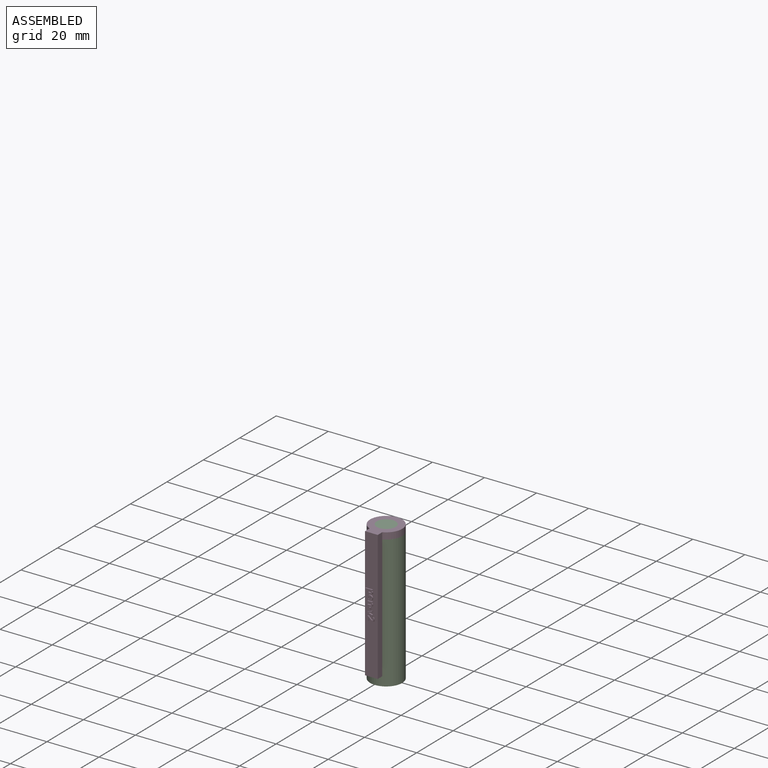
[diagram: assembled view]
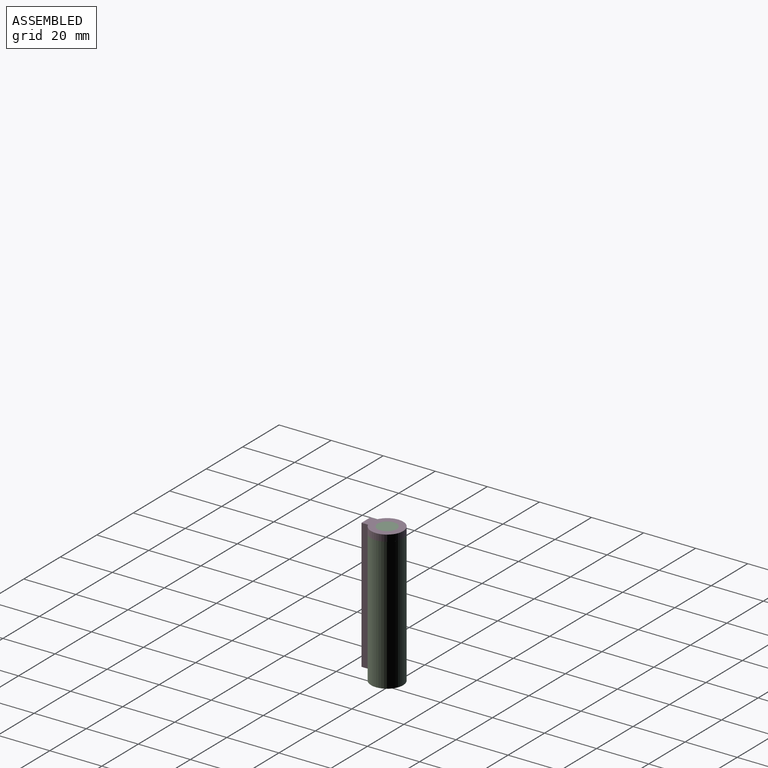
[diagram: assembled view, second angle]
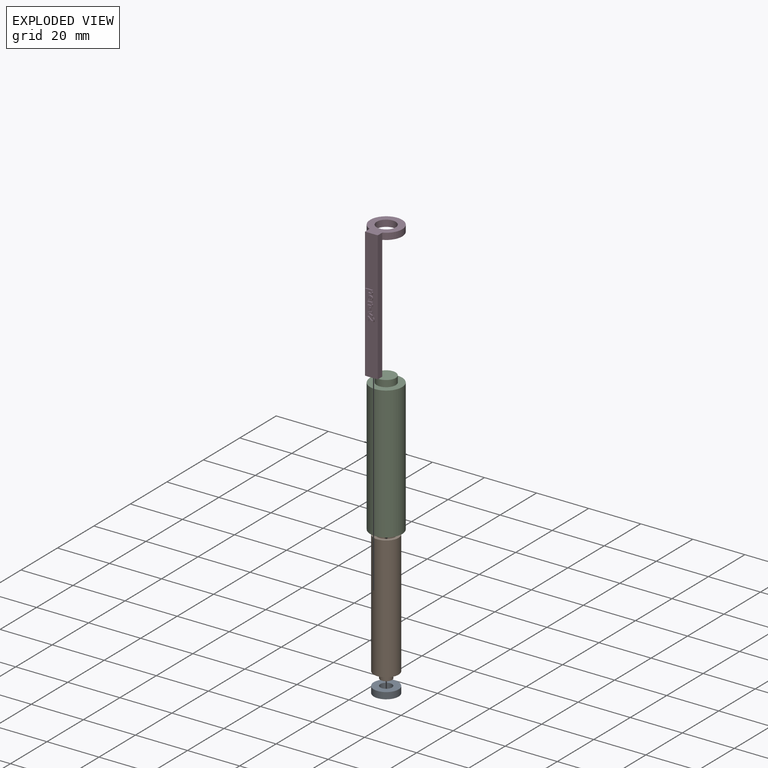
[diagram: exploded view]
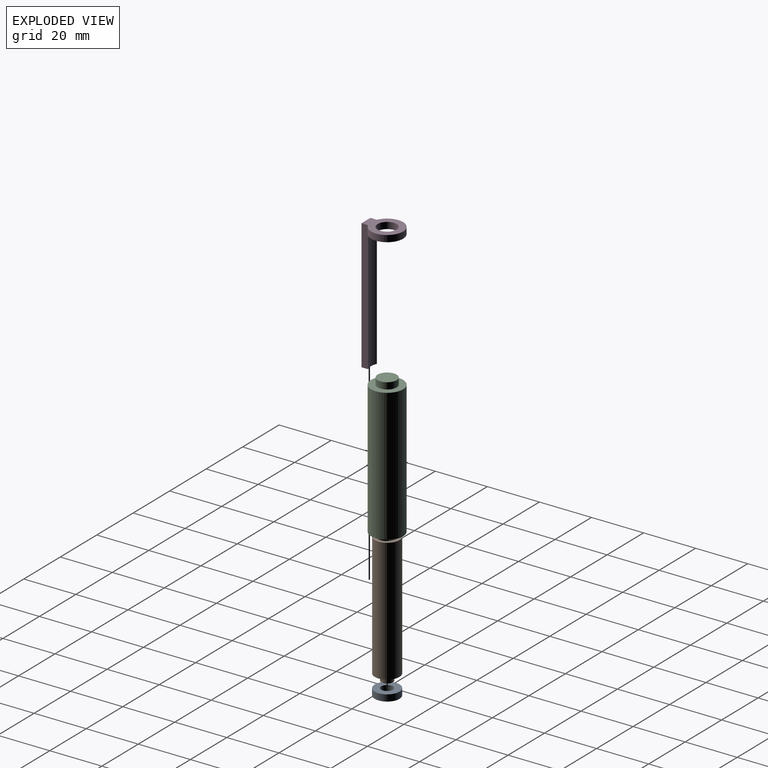
[diagram: exploded view, second angle]
ASSEMBLY  parts=4 mates=3
PART A: 4 faces, bbox 9.5x9.5x2.5 mm
  f0: cylinder r=2.25mm len=4.5mm, axis (0,0,1), area 35.3mm2, adj f2,f3
  f1: cylinder r=4.75mm len=9.5mm, axis (0,0,1), area 74.6mm2, adj f2,f3
  f2: plane 9.5x9.5mm, normal (0,0,-1), area 55mm2, adj f0,f1
  f3: plane 9.5x9.5mm, normal (0,0,1), area 55mm2, adj f0,f1
PART B: 7 faces, bbox 9.5x9.5x50 mm
  f0: cylinder r=3.5mm len=45mm, axis (0,0,-1), area 989.6mm2, adj f2,f3
  f1: cylinder r=4.75mm len=47.5mm, axis (0,0,-1), area 1417.6mm2, adj f2,f4
  f2: plane 9.5x9.5mm, normal (0,0,1), area 32.4mm2, adj f0,f1
  f3: plane 7x7mm, normal (0,0,1), area 38.5mm2, adj f0
  f4: plane 9.5x9.5mm, normal (0,0,-1), area 55mm2, adj f1,f5
  f5: cylinder r=2.25mm len=4.5mm, axis (0,0,1), area 35.3mm2, adj f4,f6
  f6: plane 4.5x4.5mm, normal (0,0,-1), area 15.9mm2, adj f5
PART C: 7 faces, bbox 12.3x12.3x53.5 mm
  f0: cylinder r=4.9mm len=50mm, axis (0,0,-1), area 1539.4mm2, adj f2,f3
  f1: cylinder r=6.15mm len=51mm, axis (0,0,-1), area 1970.7mm2, adj f2,f4
  f2: plane 12.3x12.3mm, normal (0,0,-1), area 43.4mm2, adj f0,f1
  f3: plane 9.8x9.8mm, normal (0,0,-1), area 75.4mm2, adj f0
  f4: plane 12.3x12.3mm, normal (0,0,1), area 77mm2, adj f1,f5
  f5: cylinder r=3.65mm len=7.3mm, axis (0,0,-1), area 57.3mm2, adj f4,f6
  f6: plane 7.3x7.3mm, normal (0,0,1), area 41.9mm2, adj f5
PART D: 115 faces, bbox 12.3x14.7x50 mm
  f0: plane 50x4.89mm, normal (0,-1,0), area 231.9mm2, adj f2,f6,f7,f8,f16,f17,f18,f19
  f1: cylinder r=6.15mm len=12.3mm, axis (0,0,-1), area 84mm2, adj f2,f4,f6,f7
  f2: plane 14.29x12.3mm, normal (0,0,1), area 87.5mm2, adj f0,f1,f3,f6,f7
  f3: cylinder r=3.65mm len=7.3mm, axis (0,0,-1), area 57.3mm2, adj f2,f4
  f4: plane 12.3x12.3mm, normal (0,0,-1), area 77mm2, adj f1,f3,f5
  f5: cylinder r=6.15mm len=47.5mm, axis (0,0,1), area 238.7mm2, adj f4,f6,f7,f8
  f6: plane 50x2.5mm, normal (-1,0,0), area 125mm2, adj f0,f1,f2,f5,f8
  f7: plane 50x2.5mm, normal (1,0,0), area 125mm2, adj f0,f1,f2,f5,f8
  f8: plane 4.89x2.5mm, normal (0,0,-1), area 10.6mm2, adj f0,f5,f6,f7
  f9: extruded ~0.4x0.28mm, area 0.1mm2, adj f10,f31,f32,f33
  f10: extruded ~0.4x0.27mm, area 0.1mm2, adj f9,f11,f32,f33
  f11: extruded ~0.42x0.4mm, area 0.2mm2, adj f10,f12,f32,f33
  f12: extruded ~0.57x0.4mm, area 0.3mm2, adj f11,f13,f32,f33
  f13: extruded ~0.4x0.29mm, area 0.1mm2, adj f12,f14,f32,f33
  f14: extruded ~0.44x0.4mm, area 0.2mm2, adj f13,f15,f32,f33
  f15: plane 0.4x0.06mm, normal (0,0,-1), area 0mm2, adj f14,f31,f32,f33
  f16: extruded ~0.52x0.4mm, area 0.2mm2, adj f0,f17,f30,f32
  f17: extruded ~0.4x0.38mm, area 0.2mm2, adj f0,f16,f18,f32
  f18: extruded ~0.4x0.34mm, area 0.2mm2, adj f0,f17,f19,f32
  f19: extruded ~0.52x0.4mm, area 0.2mm2, adj f0,f18,f20,f32
  f20: extruded ~0.72x0.4mm, area 0.3mm2, adj f0,f19,f21,f32
  f21: extruded ~0.52x0.4mm, area 0.2mm2, adj f0,f20,f22,f32
  f22: extruded ~0.54x0.4mm, area 0.3mm2, adj f0,f21,f23,f32
  f23: plane 0.4x0.02mm, normal (1,0,0), area 0mm2, adj f0,f22,f24,f32
  f24: plane 0.4x0.24mm, normal (0.28,0,-0.96), area 0.1mm2, adj f0,f23,f25,f32
  f25: plane 0.42x0.4mm, normal (1,0,0), area 0.2mm2, adj f0,f24,f26,f32
  f26: plane 2.72x0.4mm, normal (0,0,1), area 1.1mm2, adj f0,f25,f27,f32
  f27: plane 0.51x0.4mm, normal (-1,0,0), area 0.2mm2, adj f0,f26,f28,f32
  f28: plane 0.76x0.4mm, normal (0,0,-1), area 0.3mm2, adj f0,f27,f29,f32
  f29: extruded ~0.4x0.27mm, area 0.1mm2, adj f0,f28,f30,f32
  f30: plane 0.4x0.03mm, normal (-1,0,0), area 0mm2, adj f0,f16,f29,f32
  f31: extruded ~0.4x0.39mm, area 0.2mm2, adj f9,f15,f32,f33
  f32: plane 2.75x1.76mm, normal (0,-1,0), area 2.8mm2, adj f9,f10,f11,f12,f13,f14,f15,f16
  f33: plane 1.13x0.72mm, normal (0,-1,0), area 0.7mm2, adj f9,f10,f11,f12,f13,f14,f15,f31
  f34: extruded ~0.71x0.4mm, area 0.3mm2, adj f0,f35,f53,f54
  f35: extruded ~0.4x0.37mm, area 0.2mm2, adj f0,f34,f36,f54
  f36: extruded ~0.4x0.29mm, area 0.1mm2, adj f0,f35,f37,f54
  f37: plane 0.4x0.4mm, normal (0,0,-1), area 0.2mm2, adj f0,f36,f38,f54
  f38: extruded ~0.4x0.32mm, area 0.1mm2, adj f0,f37,f39,f54
  f39: extruded ~0.4x0.32mm, area 0.1mm2, adj f0,f38,f40,f54
  f40: extruded ~0.4x0.34mm, area 0.1mm2, adj f0,f39,f41,f54
  f41: extruded ~0.4x0.34mm, area 0.1mm2, adj f0,f40,f42,f54
  f42: plane 1.22x0.4mm, normal (-1,0,0), area 0.5mm2, adj f0,f41,f43,f54
  f43: plane 0.4x0.25mm, normal (0,0,-1), area 0.1mm2, adj f0,f42,f44,f54
  f44: extruded ~0.63x0.4mm, area 0.3mm2, adj f0,f43,f45,f54
  f45: extruded ~0.62x0.4mm, area 0.3mm2, adj f0,f44,f46,f54
  f46: extruded ~0.66x0.4mm, area 0.3mm2, adj f0,f45,f47,f54
  f47: extruded ~0.73x0.4mm, area 0.3mm2, adj f0,f46,f53,f54
  f48: extruded ~0.4x0.26mm, area 0.1mm2, adj f49,f52,f54,f55
  f49: extruded ~0.4x0.26mm, area 0.1mm2, adj f48,f50,f54,f55
  f50: extruded ~0.4x0.29mm, area 0.1mm2, adj f49,f51,f54,f55
  f51: plane 0.72x0.4mm, normal (1,0,0), area 0.3mm2, adj f50,f52,f54,f55
  f52: extruded ~0.4x0.29mm, area 0.1mm2, adj f48,f51,f54,f55
  f53: extruded ~0.71x0.4mm, area 0.3mm2, adj f0,f34,f47,f54
  f54: plane 1.95x1.74mm, normal (0,-1,0), area 2.1mm2, adj f34,f35,f36,f37,f38,f39,f40,f41
  f55: plane 0.72x0.4mm, normal (0,-1,0), area 0.2mm2, adj f48,f49,f50,f51,f52
  f56: plane 0.51x0.4mm, normal (-1,0,0), area 0.2mm2, adj f0,f57,f72,f73
  f57: plane 1.23x0.4mm, normal (0,0,-1), area 0.5mm2, adj f0,f56,f58,f73
  f58: extruded ~0.51x0.4mm, area 0.2mm2, adj f0,f57,f59,f73
  f59: extruded ~0.5x0.4mm, area 0.2mm2, adj f0,f58,f60,f73
  f60: extruded ~0.4x0.34mm, area 0.1mm2, adj f0,f59,f61,f73
  f61: extruded ~0.4x0.24mm, area 0.1mm2, adj f0,f60,f62,f73
  f62: plane 0.4x0.03mm, normal (1,0,0), area 0mm2, adj f0,f61,f63,f73
  f63: plane 0.4x0.24mm, normal (0.28,0,-0.96), area 0.1mm2, adj f0,f62,f64,f73
  f64: plane 0.4x0.39mm, normal (1,0,0), area 0.2mm2, adj f0,f63,f65,f73
  f65: plane 1.89x0.4mm, normal (0,0,1), area 0.8mm2, adj f0,f64,f66,f73
  f66: plane 0.51x0.4mm, normal (-1,0,0), area 0.2mm2, adj f0,f65,f67,f73
  f67: plane 0.89x0.4mm, normal (0,0,-1), area 0.4mm2, adj f0,f66,f68,f73
  f68: extruded ~0.48x0.4mm, area 0.2mm2, adj f0,f67,f69,f73
  f69: extruded ~0.4x0.31mm, area 0.1mm2, adj f0,f68,f70,f73
  f70: extruded ~0.4x0.23mm, area 0.1mm2, adj f0,f69,f71,f73
  f71: extruded ~0.4x0.31mm, area 0.1mm2, adj f0,f70,f72,f73
  f72: plane 1.1x0.4mm, normal (0,0,1), area 0.4mm2, adj f0,f56,f71,f73
  f73: plane 1.92x1.74mm, normal (0,-1,0), area 2.2mm2, adj f56,f57,f58,f59,f60,f61,f62,f63
  f74: plane 0.42x0.4mm, normal (0,0,1), area 0.2mm2, adj f0,f75,f77,f78
  f75: plane 0.91x0.4mm, normal (-1,0,0), area 0.4mm2, adj f0,f74,f76,f78
  f76: plane 0.42x0.4mm, normal (0,0,-1), area 0.2mm2, adj f0,f75,f77,f78
  f77: plane 0.91x0.4mm, normal (1,0,0), area 0.4mm2, adj f0,f74,f76,f78
  f78: plane 0.91x0.42mm, normal (0,-1,0), area 0.4mm2, adj f74,f75,f76,f77
  f79: plane 1.89x0.72mm, normal (-0.36,0,0.93), area 0.8mm2, adj f0,f80,f88,f89
  f80: plane 0.53x0.4mm, normal (-1,0,0), area 0.2mm2, adj f0,f79,f81,f89
  f81: plane 1.89x0.72mm, normal (-0.36,0,-0.93), area 0.8mm2, adj f0,f80,f82,f89
  f82: plane 0.54x0.4mm, normal (1,0,0), area 0.2mm2, adj f0,f81,f83,f89
  f83: plane 1.07x0.4mm, normal (0.32,0,0.95), area 0.5mm2, adj f0,f82,f84,f89
  f84: extruded ~0.4x0.39mm, area 0.2mm2, adj f0,f83,f85,f89
  f85: plane 0.4x0.01mm, normal (1,0,0), area 0mm2, adj f0,f84,f86,f89
  f86: extruded ~0.4x0.39mm, area 0.2mm2, adj f0,f85,f87,f89
  f87: plane 1.07x0.4mm, normal (0.32,0,-0.95), area 0.5mm2, adj f0,f86,f88,f89
  f88: plane 0.54x0.4mm, normal (1,0,0), area 0.2mm2, adj f0,f79,f87,f89
  f89: plane 1.97x1.89mm, normal (0,-1,0), area 1.8mm2, adj f79,f80,f81,f82,f83,f84,f85,f86
  f90: plane 1.72x0.4mm, normal (-1,0,0), area 0.7mm2, adj f0,f91,f113,f114
  f91: plane 0.44x0.4mm, normal (0,0,-1), area 0.2mm2, adj f0,f90,f92,f114
  f92: plane 1.07x0.4mm, normal (1,0,0), area 0.4mm2, adj f0,f91,f93,f114
  f93: plane 0.4x0.02mm, normal (0,0,-1), area 0mm2, adj f0,f92,f94,f114
  f94: plane 0.4x0.32mm, normal (-0.73,0,-0.69), area 0.2mm2, adj f0,f93,f95,f114
  f95: extruded ~0.45x0.44mm, area 0.3mm2, adj f0,f94,f96,f114
  f96: extruded ~0.4x0.31mm, area 0.1mm2, adj f0,f95,f97,f114
  f97: extruded ~0.4x0.32mm, area 0.1mm2, adj f0,f96,f98,f114
  f98: extruded ~0.4x0.35mm, area 0.1mm2, adj f0,f97,f99,f114
  f99: extruded ~0.4x0.28mm, area 0.1mm2, adj f0,f98,f100,f114
  f100: extruded ~0.41x0.4mm, area 0.2mm2, adj f0,f99,f101,f114
  f101: extruded ~0.4x0.32mm, area 0.1mm2, adj f0,f100,f102,f114
  f102: extruded ~0.4x0.26mm, area 0.1mm2, adj f0,f101,f103,f114
  f103: extruded ~0.4x0.3mm, area 0.1mm2, adj f0,f102,f104,f114
  f104: plane 0.4x0.34mm, normal (-0.65,0,0.76), area 0.2mm2, adj f0,f103,f105,f114
  f105: extruded ~0.4x0.28mm, area 0.1mm2, adj f0,f104,f106,f114
  f106: extruded ~0.4x0.28mm, area 0.1mm2, adj f0,f105,f107,f114
  f107: extruded ~0.4x0.22mm, area 0.1mm2, adj f0,f106,f108,f114
  f108: extruded ~0.4x0.22mm, area 0.1mm2, adj f0,f107,f109,f114
  f109: extruded ~0.4x0.19mm, area 0.1mm2, adj f0,f108,f110,f114
  f110: extruded ~0.4x0.2mm, area 0.1mm2, adj f0,f109,f111,f114
  f111: extruded ~0.4x0.39mm, area 0.2mm2, adj f0,f110,f112,f114
  f112: plane 0.63x0.62mm, normal (0.7,0,0.71), area 0.4mm2, adj f0,f111,f113,f114
  f113: plane 0.4x0.36mm, normal (0,0,1), area 0.1mm2, adj f0,f90,f112,f114
  f114: plane 2.5x1.73mm, normal (0,-1,0), area 2.3mm2, adj f90,f91,f92,f93,f94,f95,f96,f97
PLACE A t=(-70.21,-13.57,-12.8)mm
PLACE B t=(-70.21,-13.57,-12.8)mm
PLACE C t=(-70.21,-13.57,-62.8)mm
PLACE D t=(-70.21,-13.57,-62.8)mm
MATE fastened A.f1 <-> B.f1  axis (0,0,1) through (-70.21,-13.57,-15.3)mm
MATE fastened C.f0 <-> B.f1  axis (0,0,-1) through (-70.21,-13.57,32.2)mm
MATE fastened C.f1 <-> D.f1  axis (0,0,1) through (-70.21,-13.57,33.2)mm
